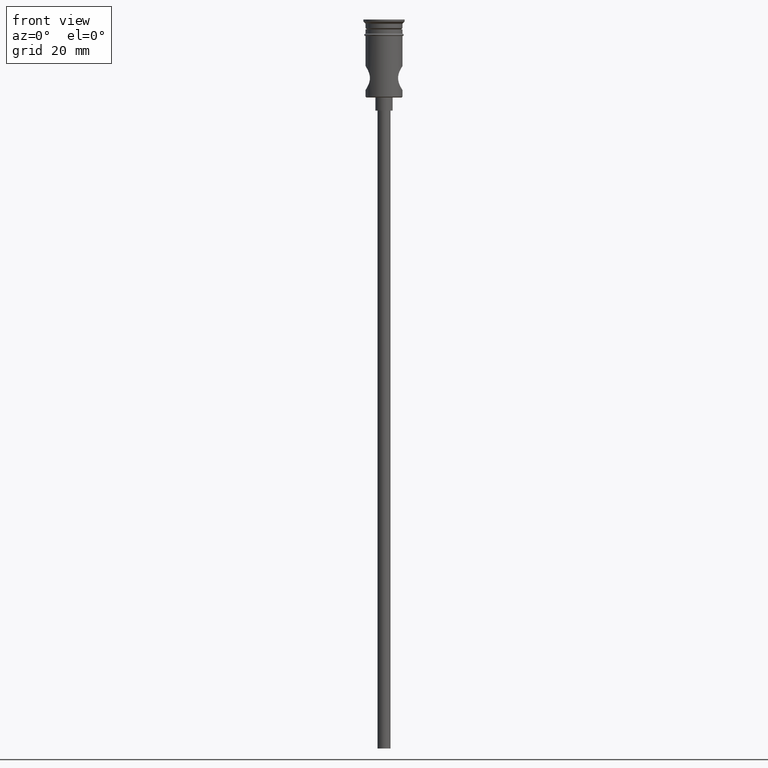
[diagram: clean part render]
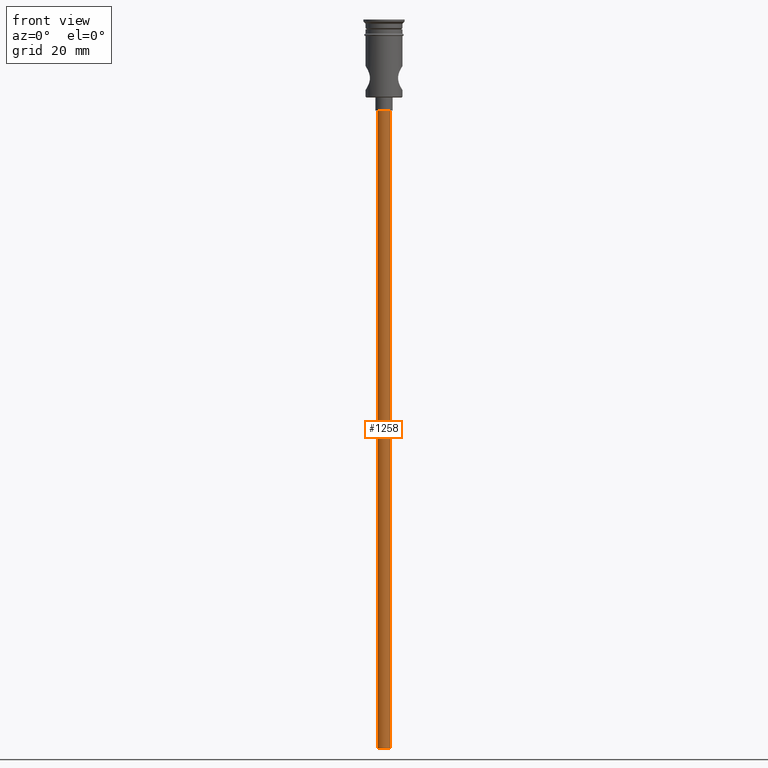
[diagram: same view with one face highlighted and labeled with its STEP entity id]
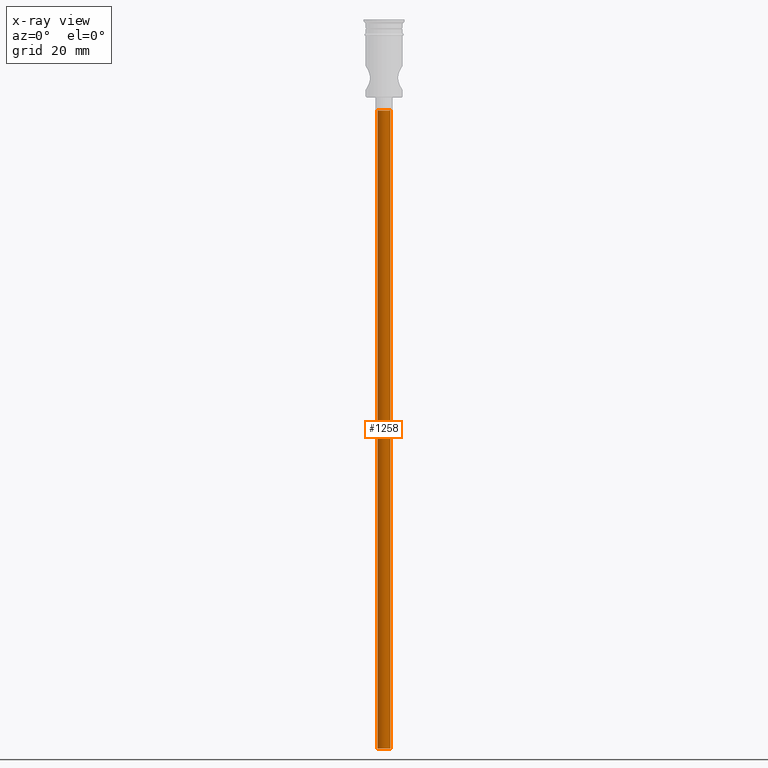
[diagram: x-ray of the same camera — body ghosted, the highlighted face saturated]
A machine part, front view. The second image highlights one B-rep face of the part: STEP entity #1258.
The next image is the same camera in x-ray: the body ghosted, the highlighted face saturated — about 0% of this face is hidden behind the body in this view.
In plain terms, the highlighted cylindrical surface (edge-blend (fillet) strip) has radius 1.5 mm, axis along (-0, -0, 1).
Its self-contained STEP definition (entity closure, byte-faithful):
#3 = VERTEX_POINT ( 'NONE', #1070 ) ;
#8 = EDGE_CURVE ( 'NONE', #3, #1370, #223, .T. ) ;
#48 = DIRECTION ( 'NONE',  ( -0.000000000000000000, -0.000000000000000000, 1.000000000000000000 ) ) ;
#94 = DIRECTION ( 'NONE',  ( -0.000000000000000000, -0.000000000000000000, 1.000000000000000000 ) ) ;
#136 = CIRCLE ( 'NONE', #220, 1.500000000000000222 ) ;
#220 = AXIS2_PLACEMENT_3D ( 'NONE', #1325, #333, #1213 ) ;
#223 = CIRCLE ( 'NONE', #1159, 1.500000000000000222 ) ;
#226 = DIRECTION ( 'NONE',  ( 0.000000000000000000, 0.000000000000000000, -1.000000000000000000 ) ) ;
#307 = LINE ( 'NONE', #640, #568 ) ;
#310 = ORIENTED_EDGE ( 'NONE', *, *, #800, .T. ) ;
#332 = ORIENTED_EDGE ( 'NONE', *, *, #1077, .F. ) ;
#333 = DIRECTION ( 'NONE',  ( 0.000000000000000000, 0.000000000000000000, -1.000000000000000000 ) ) ;
#493 = ORIENTED_EDGE ( 'NONE', *, *, #8, .F. ) ;
#529 = DIRECTION ( 'NONE',  ( 1.000000000000000000, 0.000000000000000000, 0.000000000000000000 ) ) ;
#568 = VECTOR ( 'NONE', #1076, 1000.000000000000000 ) ;
#578 = CARTESIAN_POINT ( 'NONE',  ( -1.500000000000000222, 1.836970198721030181E-16, -20.99999999999999645 ) ) ;
#588 = LINE ( 'NONE', #923, #1087 ) ;
#640 = CARTESIAN_POINT ( 'NONE',  ( 1.500000000000000222, 0.000000000000000000, -167.9999999999999716 ) ) ;
#651 = EDGE_CURVE ( 'NONE', #3, #700, #307, .T. ) ;
#700 = VERTEX_POINT ( 'NONE', #942 ) ;
#800 = EDGE_CURVE ( 'NONE', #700, #1116, #136, .T. ) ;
#923 = CARTESIAN_POINT ( 'NONE',  ( -1.500000000000000222, 1.836970198721030181E-16, -167.9999999999999716 ) ) ;
#942 = CARTESIAN_POINT ( 'NONE',  ( 1.500000000000000222, 0.000000000000000000, -20.99999999999999645 ) ) ;
#979 = ORIENTED_EDGE ( 'NONE', *, *, #651, .T. ) ;
#983 = CARTESIAN_POINT ( 'NONE',  ( 0.000000000000000000, 0.000000000000000000, -167.9999999999999716 ) ) ;
#1070 = CARTESIAN_POINT ( 'NONE',  ( 1.500000000000000222, 0.000000000000000000, -167.9999999999999716 ) ) ;
#1075 = CYLINDRICAL_SURFACE ( 'NONE', #1307, 1.500000000000000222 ) ;
#1076 = DIRECTION ( 'NONE',  ( -0.000000000000000000, -0.000000000000000000, 1.000000000000000000 ) ) ;
#1077 = EDGE_CURVE ( 'NONE', #1370, #1116, #588, .T. ) ;
#1087 = VECTOR ( 'NONE', #48, 1000.000000000000000 ) ;
#1116 = VERTEX_POINT ( 'NONE', #578 ) ;
#1159 = AXIS2_PLACEMENT_3D ( 'NONE', #1419, #226, #1341 ) ;
#1213 = DIRECTION ( 'NONE',  ( -1.000000000000000000, 0.000000000000000000, 0.000000000000000000 ) ) ;
#1258 = ADVANCED_FACE ( 'NONE', ( #1355 ), #1075, .T. ) ;
#1291 = CARTESIAN_POINT ( 'NONE',  ( -1.500000000000000222, 1.836970198721030181E-16, -167.9999999999999716 ) ) ;
#1301 = EDGE_LOOP ( 'NONE', ( #332, #493, #979, #310 ) ) ;
#1307 = AXIS2_PLACEMENT_3D ( 'NONE', #983, #94, #529 ) ;
#1325 = CARTESIAN_POINT ( 'NONE',  ( 0.000000000000000000, 0.000000000000000000, -20.99999999999999645 ) ) ;
#1341 = DIRECTION ( 'NONE',  ( -1.000000000000000000, 0.000000000000000000, 0.000000000000000000 ) ) ;
#1355 = FACE_OUTER_BOUND ( 'NONE', #1301, .T. ) ;
#1370 = VERTEX_POINT ( 'NONE', #1291 ) ;
#1419 = CARTESIAN_POINT ( 'NONE',  ( 0.000000000000000000, 0.000000000000000000, -167.9999999999999716 ) ) ;